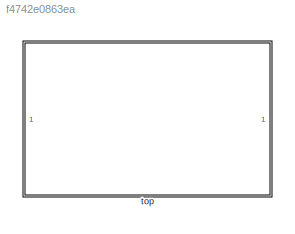
MODEL slx_f4742e0863ea
KIND model
CONFIG AbsTol = auto
CONFIG FixedStep = auto
CONFIG MaxStep = auto
CONFIG MinStep = auto
CONFIG RelTol = 1e-3
CONFIG SampleTimeConstraint = Unconstrained
CONFIG Solver = VariableStepAuto
CONFIG SolverMode = Auto
CONFIG SolverName = VariableStepAuto
CONFIG StartTime = 0.0
CONFIG StopTime = 10.0
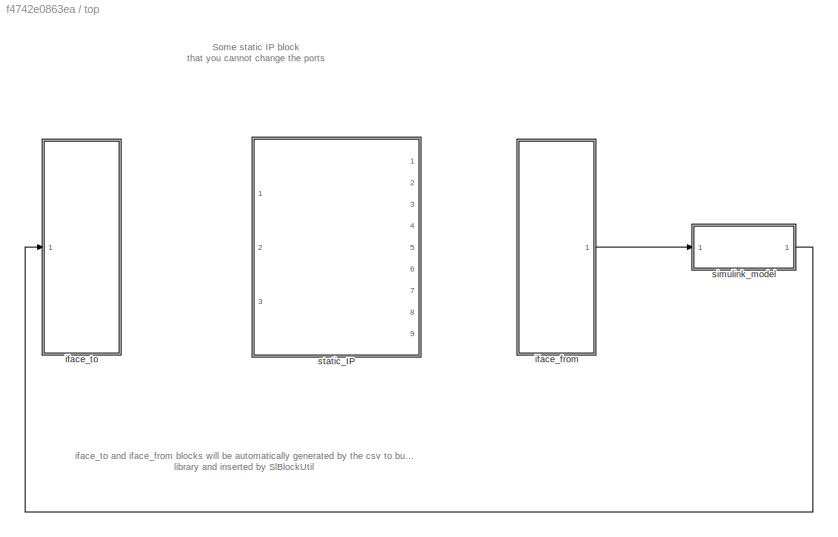
BLOCK [SubSystem] top
  Ports = []
  RequestExecContextInheritance = off
  Variant = off
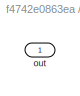
BLOCK [SubSystem] top/iface_from
  Ports = [0, 1]
  RequestExecContextInheritance = off
  Variant = off
BLOCK [Outport] top/iface_from/out
  IconDisplay = Port number
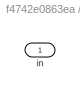
BLOCK [SubSystem] top/iface_to
  Ports = [1]
  RequestExecContextInheritance = off
  Variant = off
BLOCK [Inport] top/iface_to/in
  IconDisplay = Port number
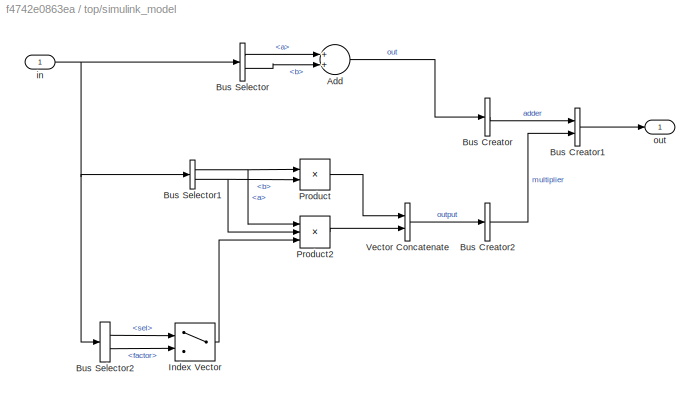
BLOCK [SubSystem] top/simulink_model
  Ports = [1, 1]
  RequestExecContextInheritance = off
  Variant = off
BLOCK [Sum] top/simulink_model/Add
  InputSameDT = off
  OutDataTypeStr = Inherit: Inherit via internal rule
  Ports = [2, 1]
  SaturateOnIntegerOverflow = off
BLOCK [BusCreator] top/simulink_model/Bus Creator
  DisplayOption = bar
  InheritFromInputs = on
  Inputs = 1
  Ports = [1, 1]
BLOCK [BusCreator] top/simulink_model/Bus Creator1
  DisplayOption = bar
  InheritFromInputs = on
  Inputs = 2
  Ports = [2, 1]
BLOCK [BusCreator] top/simulink_model/Bus Creator2
  DisplayOption = bar
  InheritFromInputs = on
  Inputs = 1
  Ports = [1, 1]
BLOCK [BusSelector] top/simulink_model/Bus Selector
  OutputSignals = adder.adder_lvl1.adder_lvl2.a,adder.adder_lvl1.adder_lvl2.b
  Ports = [1, 2]
BLOCK [BusSelector] top/simulink_model/Bus Selector1
  OutputSignals = multiplier.a,multiplier.b
  Ports = [1, 2]
BLOCK [BusSelector] top/simulink_model/Bus Selector2
  OutputSignals = multiplier.sel,multiplier.factor
  Ports = [1, 2]
BLOCK [MultiPortSwitch] top/simulink_model/Index Vector
  DataPortOrder = Zero-based contiguous
  InputSameDT = off
  Inputs = 1
  Ports = [2, 1]
  SaturateOnIntegerOverflow = off
  zeroidx = on
BLOCK [Product] top/simulink_model/Product
  InputSameDT = off
  OutDataTypeStr = Inherit: Inherit via internal rule
  Ports = [2, 1]
  RndMeth = Floor
  SaturateOnIntegerOverflow = off
BLOCK [Product] top/simulink_model/Product2
  InputSameDT = off
  Inputs = 3
  OutDataTypeStr = Inherit: Inherit via internal rule
  Ports = [3, 1]
  RndMeth = Floor
  SaturateOnIntegerOverflow = off
BLOCK [Concatenate] top/simulink_model/Vector Concatenate
  Ports = [2, 1]
BLOCK [Inport] top/simulink_model/in
  IconDisplay = Port number
BLOCK [Outport] top/simulink_model/out
  IconDisplay = Port number
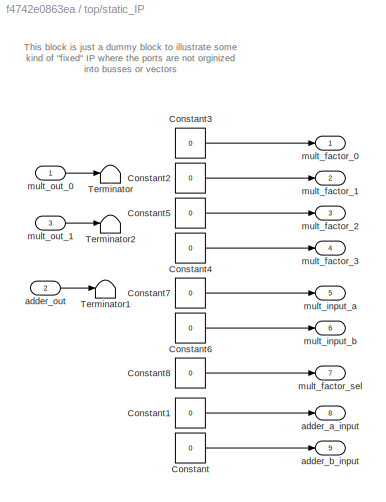
BLOCK [SubSystem] top/static_IP
  Ports = [3, 9]
  RequestExecContextInheritance = off
  Variant = off
BLOCK [Constant] top/static_IP/Constant
  Value = 0
BLOCK [Constant] top/static_IP/Constant1
  Value = 0
BLOCK [Constant] top/static_IP/Constant2
  Value = 0
BLOCK [Constant] top/static_IP/Constant3
  Value = 0
BLOCK [Constant] top/static_IP/Constant4
  Value = 0
BLOCK [Constant] top/static_IP/Constant5
  Value = 0
BLOCK [Constant] top/static_IP/Constant6
  Value = 0
BLOCK [Constant] top/static_IP/Constant7
  Value = 0
BLOCK [Constant] top/static_IP/Constant8
  Value = 0
BLOCK [Terminator] top/static_IP/Terminator
BLOCK [Terminator] top/static_IP/Terminator1
BLOCK [Terminator] top/static_IP/Terminator2
BLOCK [Outport] top/static_IP/adder_a_input
  IconDisplay = Port number
  Port = 8
BLOCK [Outport] top/static_IP/adder_b_input
  IconDisplay = Port number
  Port = 9
BLOCK [Inport] top/static_IP/adder_out
  IconDisplay = Port number
  Port = 2
BLOCK [Outport] top/static_IP/mult_factor_0
  IconDisplay = Port number
BLOCK [Outport] top/static_IP/mult_factor_1
  IconDisplay = Port number
  Port = 2
BLOCK [Outport] top/static_IP/mult_factor_2
  IconDisplay = Port number
  Port = 3
BLOCK [Outport] top/static_IP/mult_factor_3
  IconDisplay = Port number
  Port = 4
BLOCK [Outport] top/static_IP/mult_factor_sel
  IconDisplay = Port number
  Port = 7
BLOCK [Outport] top/static_IP/mult_input_a
  IconDisplay = Port number
  Port = 5
BLOCK [Outport] top/static_IP/mult_input_b
  IconDisplay = Port number
  Port = 6
BLOCK [Inport] top/static_IP/mult_out_0
  IconDisplay = Port number
BLOCK [Inport] top/static_IP/mult_out_1
  IconDisplay = Port number
  Port = 3
ANNOTATION top: Some static IP block that you cannot change the ports
ANNOTATION top: iface_to and iface_from blocks will be automatically generated by the csv to bus library and inserted by SlBlockUtil
ANNOTATION top/static_IP: This block is just a dummy block to illustrate some kind of "fixed" IP where the ports are not orginized into busses or vectors
LINE top/iface_from:1 -> top/simulink_model:1
LINE top/simulink_model/Add:1 -> top/simulink_model/Bus Creator:1
LINE top/simulink_model/Bus Creator1:1 -> top/simulink_model/out:1
LINE top/simulink_model/Bus Creator2:1 -> top/simulink_model/Bus Creator1:2
LINE top/simulink_model/Bus Creator:1 -> top/simulink_model/Bus Creator1:1
NET top/simulink_model/Bus Selector1:1 -> top/simulink_model/Product2:1, top/simulink_model/Product:1
NET top/simulink_model/Bus Selector1:2 -> top/simulink_model/Product2:2, top/simulink_model/Product:2
LINE top/simulink_model/Bus Selector2:1 -> top/simulink_model/Index Vector:1
LINE top/simulink_model/Bus Selector2:2 -> top/simulink_model/Index Vector:2
LINE top/simulink_model/Bus Selector:1 -> top/simulink_model/Add:1
LINE top/simulink_model/Bus Selector:2 -> top/simulink_model/Add:2
LINE top/simulink_model/Index Vector:1 -> top/simulink_model/Product2:3
LINE top/simulink_model/Product2:1 -> top/simulink_model/Vector Concatenate:2
LINE top/simulink_model/Product:1 -> top/simulink_model/Vector Concatenate:1
LINE top/simulink_model/Vector Concatenate:1 -> top/simulink_model/Bus Creator2:1
NET top/simulink_model/in:1 -> top/simulink_model/Bus Selector1:1, top/simulink_model/Bus Selector2:1, top/simulink_model/Bus Selector:1
LINE top/simulink_model:1 -> top/iface_to:1
LINE top/static_IP/Constant1:1 -> top/static_IP/adder_a_input:1
LINE top/static_IP/Constant2:1 -> top/static_IP/mult_factor_1:1
LINE top/static_IP/Constant3:1 -> top/static_IP/mult_factor_0:1
LINE top/static_IP/Constant4:1 -> top/static_IP/mult_factor_3:1
LINE top/static_IP/Constant5:1 -> top/static_IP/mult_factor_2:1
LINE top/static_IP/Constant6:1 -> top/static_IP/mult_input_b:1
LINE top/static_IP/Constant7:1 -> top/static_IP/mult_input_a:1
LINE top/static_IP/Constant8:1 -> top/static_IP/mult_factor_sel:1
LINE top/static_IP/Constant:1 -> top/static_IP/adder_b_input:1
LINE top/static_IP/adder_out:1 -> top/static_IP/Terminator1:1
LINE top/static_IP/mult_out_0:1 -> top/static_IP/Terminator:1
LINE top/static_IP/mult_out_1:1 -> top/static_IP/Terminator2:1
note: NET lines group one-source signal fan-out (src -> all destinations, sorted); 1:1 wires keep LINE
